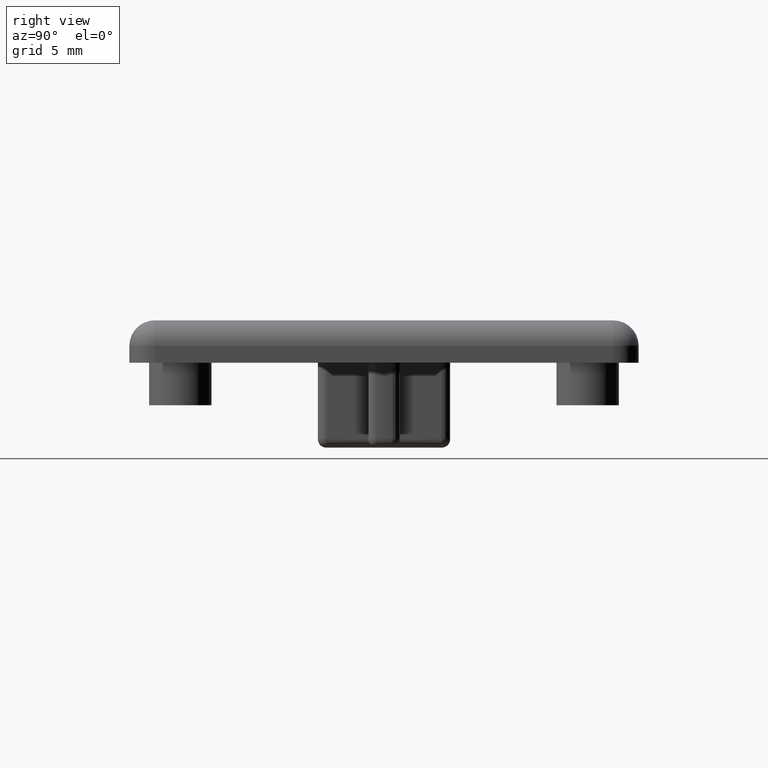
[diagram: clean part render]
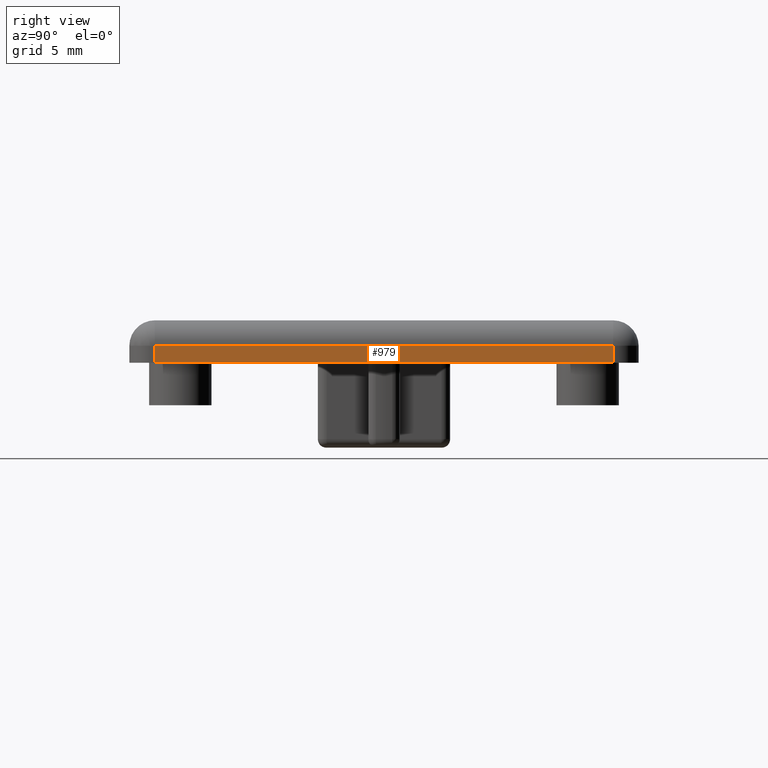
[diagram: same view with one face highlighted and labeled with its STEP entity id]
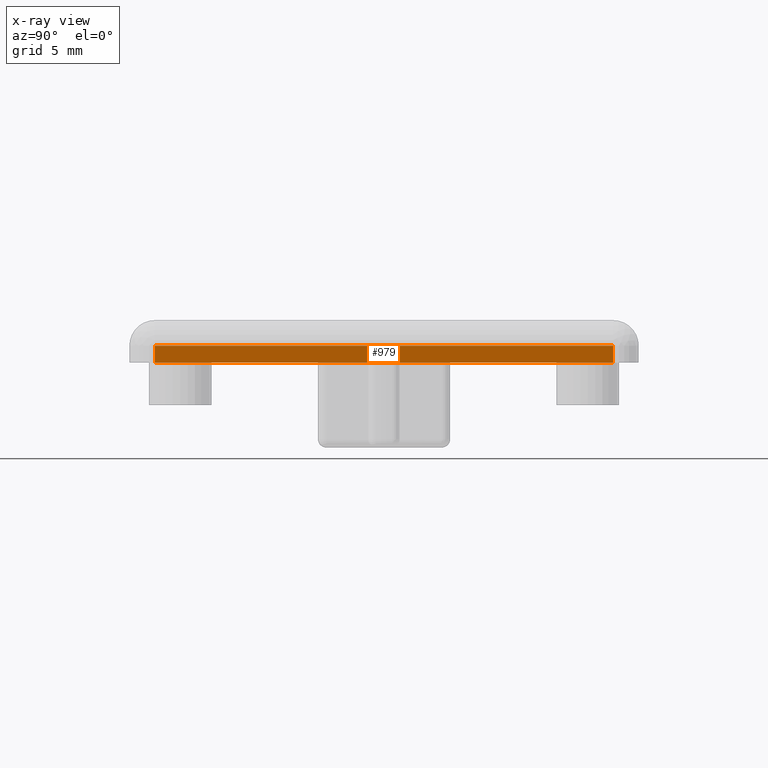
[diagram: x-ray of the same camera — body ghosted, the highlighted face saturated]
A machine part, right view. The second image highlights one B-rep face of the part: STEP entity #979.
The next image is the same camera in x-ray: the body ghosted, the highlighted face saturated — about 0% of this face is hidden behind the body in this view.
In plain terms, the highlighted planar face has unit normal (1, 0, 0).
Its self-contained STEP definition (entity closure, byte-faithful):
#35=PLANE('',#1135);
#93=LINE('',#1696,#160);
#100=LINE('',#1726,#167);
#106=LINE('',#1744,#173);
#112=LINE('',#1759,#179);
#160=VECTOR('',#1400,10.);
#167=VECTOR('',#1433,10.);
#173=VECTOR('',#1455,10.);
#179=VECTOR('',#1475,10.);
#274=FACE_OUTER_BOUND('',#339,.T.);
#339=EDGE_LOOP('',(#870,#871,#872,#873));
#472=VERTEX_POINT('',#1689);
#474=VERTEX_POINT('',#1694);
#480=VERTEX_POINT('',#1715);
#483=VERTEX_POINT('',#1722);
#596=EDGE_CURVE('',#474,#472,#93,.T.);
#611=EDGE_CURVE('',#480,#483,#100,.T.);
#621=EDGE_CURVE('',#472,#480,#106,.T.);
#628=EDGE_CURVE('',#483,#474,#112,.T.);
#870=ORIENTED_EDGE('',*,*,#596,.F.);
#871=ORIENTED_EDGE('',*,*,#628,.F.);
#872=ORIENTED_EDGE('',*,*,#611,.F.);
#873=ORIENTED_EDGE('',*,*,#621,.F.);
#979=ADVANCED_FACE('',(#274),#35,.T.);
#1135=AXIS2_PLACEMENT_3D('',#1758,#1473,#1474);
#1400=DIRECTION('',(0.,0.,1.));
#1433=DIRECTION('',(0.,0.,-1.));
#1455=DIRECTION('',(0.,1.,0.));
#1473=DIRECTION('center_axis',(1.,0.,0.));
#1474=DIRECTION('ref_axis',(0.,1.,0.));
#1475=DIRECTION('',(0.,-1.,0.));
#1689=CARTESIAN_POINT('',(15.,-13.5,1.));
#1694=CARTESIAN_POINT('',(15.,-13.5,0.));
#1696=CARTESIAN_POINT('',(15.,-13.5,0.));
#1715=CARTESIAN_POINT('',(15.,13.5,1.));
#1722=CARTESIAN_POINT('',(15.,13.5,0.));
#1726=CARTESIAN_POINT('',(15.,13.5,0.));
#1744=CARTESIAN_POINT('',(15.,-8.82361806591142,1.));
#1758=CARTESIAN_POINT('Origin',(15.,-15.,0.));
#1759=CARTESIAN_POINT('',(15.,15.,0.));